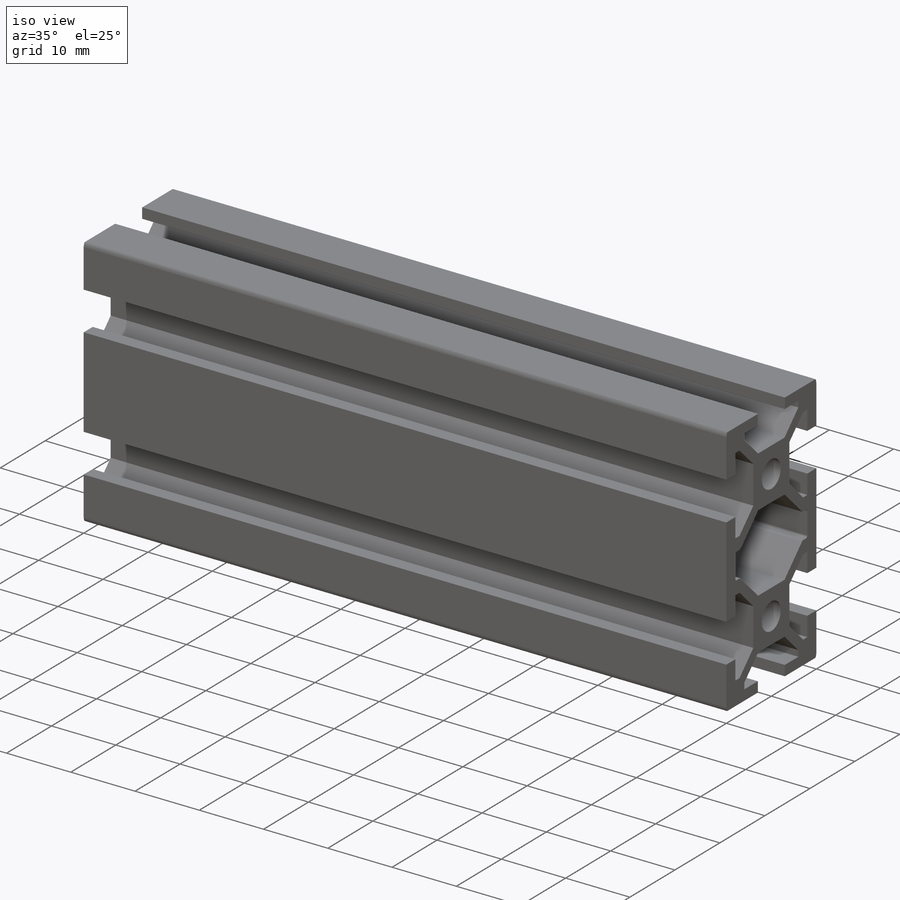
[diagram: iso view]
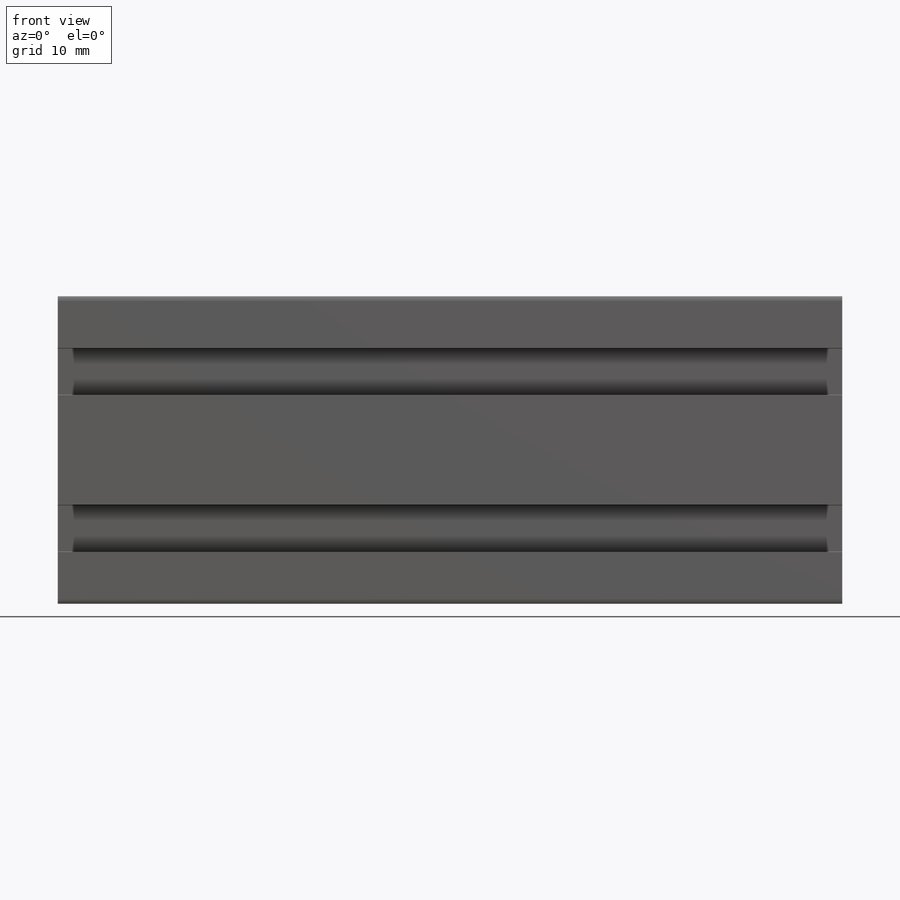
[diagram: front view]
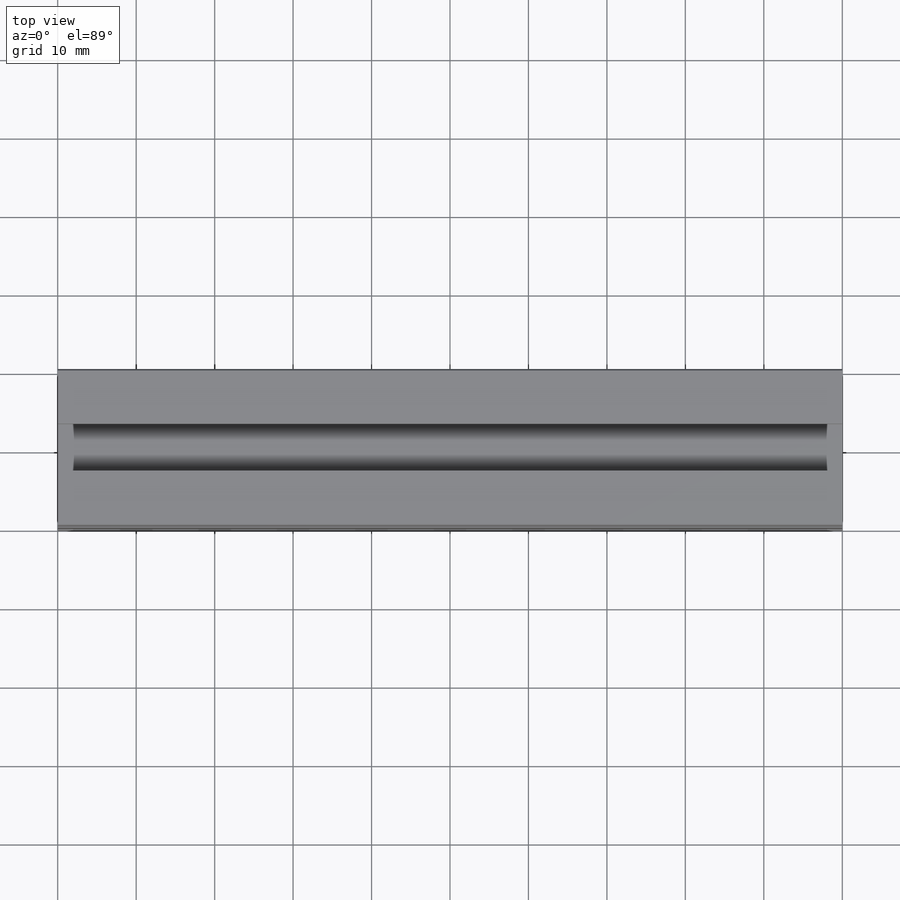
[diagram: top view]
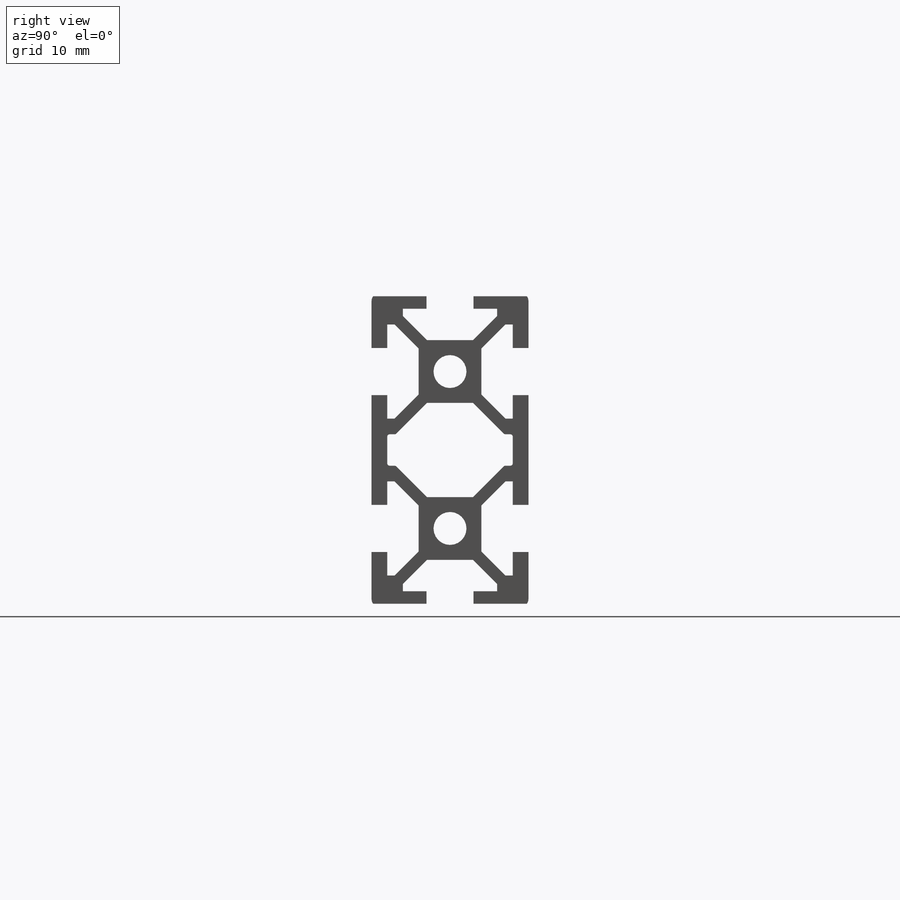
[diagram: right view]
SOLIDWORKS PART (.sldprt)
format: sldprt  version: not decoded by parser v0  size: 1,149,440 bytes
history: native  units: mm
features: sketch x23, thread x8, extrude x5, cut_revolve x5, cut_extrude x5, hole x4, plane x3, material x1 (+26 scaffold rows collapsed; 15 parser-record rows omitted)
feature tree (95):
  scaffold x26  (default folders/planes/origin — collapsed)
  material  "Material <not specified>"
  sketch  "Sketch1"  dims[c1.D3=4.2mm c1.A=30.0mm c1.B=30.0mm c2.A=30.0mm c2.B=30.0mm c3.A=30.0mm c3.B=30.0mm c3.D1=90.0mm c3.D2=90.0mm c3.D3=90.0mm c4.A=30.0mm c5.A=30.0mm c5.B=90.0mm c6.A=30.0mm c6.B=90.0mm c7.A=20.0mm c7.B=20.0mm c7.D1=19.2mm c7.D2=20.0mm c8.A=20.0mm c8.B=19.2mm c9.A=20.0mm c9.T=39.2mm]
  extrude  "Boss-Extrude1"  [1 undecoded]
  plane  "Plane1"  Offset=19.6mm FIX_1=19.6mm
  plane  "Plane2"  Offset=0mm FIX_2=0mm
  plane  "Plane3"
  parser-record x15  (decoder bookkeeping rows leaked as tree rows — omitted from the tree; the rows remain in map.json)
  sketch  "Sketch2"  dims[c1.T=39.2mm c1.D1_s=9.5mm c1.D_s=5.5mm c1.FIX_3=5.6mm c1.XA=20.0mm c1.D3=20.0mm c2.XA=7.0mm]
  cut_revolve  "Cut-Revolve1"  Angle=360deg FIX_4=360deg
  sketch  "Sketch3"  dims[c1.D1_s=9.5mm c1.D_s=5.5mm c1.D2=~78.161434mm c2.D2=90.0deg c2.T=39.2mm c2.FIX_5=5.6mm c2.XB=19.0mm]
  cut_revolve  "Cut-Revolve2"  Angle=360deg FIX_6=360deg
  sketch  "Sketch4"  dims[c1.D1_s=9.5mm c1.D_s=5.5mm c1.T=39.2mm c1.FIX_7=5.6mm c1.XC=70.0mm c2.XC=70.0mm c3.XC=31.0mm]
  cut_revolve  "Cut-Revolve3"  Angle=360deg FIX_8=360deg
  sketch  "Sketch5"  dims[c1.D1_s=9.5mm c1.D_s=5.5mm c1.D2=~25.941951mm c2.D2=90.0deg c2.FIX_9=5.6mm c2.T=39.2mm c2.XD=95.0mm c3.XD=95.0mm c4.XD=43.0mm]
  cut_revolve  "Cut-Revolve4"  Angle=360deg FIX_10=360deg
  sketch  "Sketch6"  dims[c1.XE=120.0mm c1.D1_s=9.5mm c1.D_s=5.5mm c1.T=39.2mm c1.FIX_11=5.6mm c2.XE=120.0mm c3.XE=55.0mm]
  cut_revolve  "Cut-Revolve5"  Angle=360deg FIX_12=360deg
  sketch  "Sketch7"  dims[D=7.35mm AV=7.0mm]
  cut_extrude  "Cut-Extrude1"  Depth=39.2mm T=39.2mm
  sketch  "Sketch8"  dims[D=7.35mm BV=19.0mm]
  cut_extrude  "Cut-Extrude2"  Depth=39.2mm T=39.2mm
  sketch  "Sketch9"  dims[D=7.35mm CV=31.0mm]
  cut_extrude  "Cut-Extrude3"  Depth=39.2mm T=39.2mm
  sketch  "Sketch10"  dims[D=7.35mm DV=43.0mm]
  cut_extrude  "Cut-Extrude4"  Depth=39.2mm T=39.2mm
  sketch  "Sketch11"  dims[D=7.35mm EV=55.0mm]
  cut_extrude  "Cut-Extrude5"  Depth=39.2mm T=39.2mm
  sketch  "Sketch12"  dims[FIX_13=4.2mm FIX_9=30.0mm FIX_10=30.0mm FIX_14=10.0mm FIX_15=20.0mm]
  extrude  "Boss-Extrude2"  Depth=15mm FIX_16=15mm
  hole  "Tapped Hole1"  Diameter=4.2mm Depth=15mm
  sketch  "Sketch14"  dims[FIX_17=20.0mm FIX_18=10.0mm]
  sketch  "Sketch13"  dims[hole-wizard template sketch: 61 standard entries collapsed; hole parameters above]
  thread  "Hole Thread1"  Diameter=15mm NFIX_2=15mm NFIX_1=5mm  [1 undecoded]
  thread  "Hole Thread2"  Diameter=15mm NFIX_2=15mm NFIX_1=5mm  [1 undecoded]
  sketch  "Sketch15"  dims[c1.FIX_14=6.8mm c1.FIX_15=4.2mm c1.FIX_19=4.2mm c2.FIX_15=30.0mm c2.FIX_16=30.0mm c2.FIX_20=20.0mm c2.FIX_21=10.0mm]
  extrude  "Boss-Extrude3"  Depth=15mm FIX_22=15mm
  hole  "Tapped Hole2"  Diameter=4.2mm Depth=15mm
  sketch  "Sketch17"  dims[FIX_23=10.0mm FIX_24=20.0mm]
  sketch  "Sketch16"  dims[hole-wizard template sketch: 61 standard entries collapsed; hole parameters above]
  thread  "Hole Thread3"  Diameter=15mm NFIX_2=15mm NFIX_1=5mm  [1 undecoded]
  thread  "Hole Thread4"  Diameter=15mm NFIX_2=15mm NFIX_1=5mm  [1 undecoded]
  sketch  "Sketch18"  dims[FIX_17=4.2mm FIX_25=4.2mm FIX_21=30.0mm FIX_22=30.0mm FIX_26=20.0mm FIX_27=10.0mm]
  extrude  "Boss-Extrude4"  Depth=15mm FIX_28=15mm
  sketch  "Sketch19"  dims[FIX_19=4.2mm FIX_29=4.2mm FIX_25=30.0mm FIX_26=30.0mm FIX_30=20.0mm FIX_31=10.0mm]
  extrude  "Boss-Extrude5"  Depth=15mm FIX_32=15mm
  hole  "Tapped Hole3"  Diameter=4.2mm Depth=15mm
  sketch  "Sketch21"  dims[FIX_33=20.0mm FIX_34=10.0mm]
  sketch  "Sketch20"  dims[hole-wizard template sketch: 61 standard entries collapsed; hole parameters above]
  thread  "Hole Thread5"  Diameter=15mm NFIX_2=15mm NFIX_1=5mm  [1 undecoded]
  thread  "Hole Thread6"  Diameter=15mm NFIX_2=15mm NFIX_1=5mm  [1 undecoded]
  hole  "Tapped Hole4"  Diameter=4.2mm Depth=15mm
  sketch  "Sketch23"  dims[FIX_35=20.0mm FIX_36=10.0mm]
  sketch  "Sketch22"  dims[hole-wizard template sketch: 61 standard entries collapsed; hole parameters above]
  thread  "Hole Thread7"  Diameter=15mm NFIX_2=15mm NFIX_1=5mm  [1 undecoded]
  thread  "Hole Thread8"  Diameter=15mm NFIX_2=15mm NFIX_1=5mm  [1 undecoded]
decode coverage: 49 of 50 modeling features carry decoded parameters
note: ~ marks probable driven/reference dimensions
note: 9 parameter values undecoded
summary: Diameter pulled from absorbed wizard sketch
note: suppression state not decoded; provenance and decode notes live in map.json
